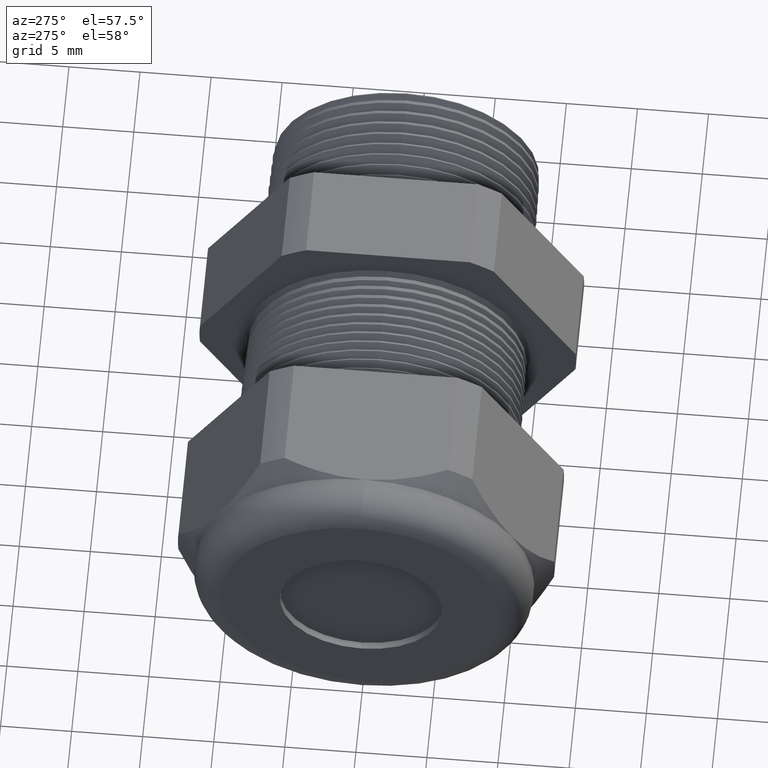
[diagram: clean part render]
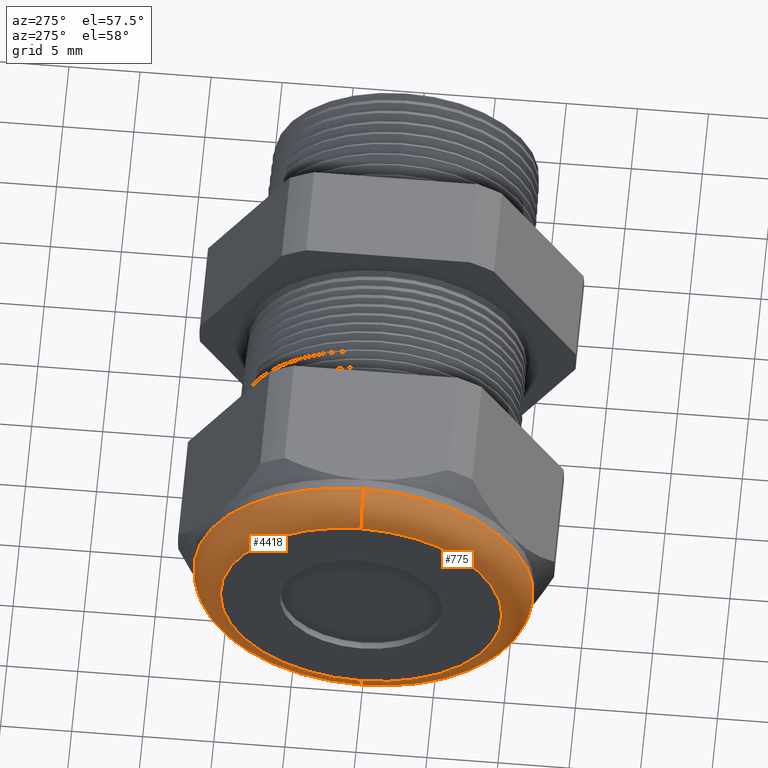
[diagram: same view with one multi-face feature highlighted, each face labeled with its STEP entity id]
A machine part, auxiliary view. The highlighted faces form ONE feature: a constant-radius fillet chain: 2 tangent blend faces with common blend radius 2.032 mm. The faces share edges in the B-rep.
Their STEP definitions:
[1] entity #4418 (Torus):
#3136 = DIRECTION ( 'NONE',  ( 0.0000000000000000000, 0.0000000000000000000, 1.000000000000000000 ) ) ;
#3137 = DIRECTION ( 'NONE',  ( -1.000000000000000000, 0.0000000000000000000, 0.0000000000000000000 ) ) ;
#3138 = AXIS2_PLACEMENT_3D ( 'NONE', #3141, #3137, #3136 ) ;
#3139 = TOROIDAL_SURFACE ( 'NONE', #3138, 0.3899999999999999600, 0.08000000000000000200 ) ;
#3141 = CARTESIAN_POINT ( 'NONE',  ( -1.330000000000000100, 0.0000000000000000000, 0.0000000000000000000 ) ) ;
#3142 = FACE_OUTER_BOUND ( 'NONE', #4419, .T. ) ;
#3143 = CARTESIAN_POINT ( 'NONE',  ( -1.330000000000000100, 0.0000000000000000000, -0.4699999999999999200 ) ) ;
#3420 = CARTESIAN_POINT ( 'NONE',  ( -1.409999999999999900, 0.0000000000000000000, 0.3899999999999999600 ) ) ;
#3436 = CIRCLE ( 'NONE', #3497, 0.07999999999999996000 ) ;
#3468 = DIRECTION ( 'NONE',  ( 0.0000000000000000000, 0.0000000000000000000, 1.000000000000000000 ) ) ;
#3469 = DIRECTION ( 'NONE',  ( 1.000000000000000000, 0.0000000000000000000, 0.0000000000000000000 ) ) ;
#3470 = CARTESIAN_POINT ( 'NONE',  ( -1.330000000000000100, 0.0000000000000000000, 0.0000000000000000000 ) ) ;
#3471 = AXIS2_PLACEMENT_3D ( 'NONE', #3470, #3469, #3468 ) ;
#3472 = CIRCLE ( 'NONE', #3471, 0.4699999999999999200 ) ;
#3474 = CARTESIAN_POINT ( 'NONE',  ( -1.330000000000000100, 5.755839955992558400E-017, 0.4699999999999999200 ) ) ;
#3476 = DIRECTION ( 'NONE',  ( 0.0000000000000000000, -1.224646799147353900E-016, 1.000000000000000000 ) ) ;
#3477 = DIRECTION ( 'NONE',  ( 0.0000000000000000000, 1.000000000000000000, 1.224646799147353200E-016 ) ) ;
#3478 = CARTESIAN_POINT ( 'NONE',  ( -1.330000000000000100, 4.776122516674676800E-017, -0.3899999999999999600 ) ) ;
#3479 = AXIS2_PLACEMENT_3D ( 'NONE', #3478, #3477, #3476 ) ;
#3480 = CIRCLE ( 'NONE', #3479, 0.07999999999999996000 ) ;
#3481 = CARTESIAN_POINT ( 'NONE',  ( -1.409999999999999900, 5.265981236333617600E-017, -0.3899999999999999600 ) ) ;
#3482 = DIRECTION ( 'NONE',  ( 0.0000000000000000000, 0.0000000000000000000, 1.000000000000000000 ) ) ;
#3483 = DIRECTION ( 'NONE',  ( -1.000000000000000000, 0.0000000000000000000, 0.0000000000000000000 ) ) ;
#3484 = CARTESIAN_POINT ( 'NONE',  ( -1.409999999999999900, 0.0000000000000000000, 0.0000000000000000000 ) ) ;
#3485 = AXIS2_PLACEMENT_3D ( 'NONE', #3484, #3483, #3482 ) ;
#3486 = CIRCLE ( 'NONE', #3485, 0.3899999999999999600 ) ;
#3494 = DIRECTION ( 'NONE',  ( 0.0000000000000000000, 0.0000000000000000000, -1.000000000000000000 ) ) ;
#3495 = DIRECTION ( 'NONE',  ( 0.0000000000000000000, -1.000000000000000000, 0.0000000000000000000 ) ) ;
#3496 = CARTESIAN_POINT ( 'NONE',  ( -1.330000000000000100, 0.0000000000000000000, 0.3899999999999999600 ) ) ;
#3497 = AXIS2_PLACEMENT_3D ( 'NONE', #3496, #3495, #3494 ) ;
#4417 = VERTEX_POINT ( 'NONE', #3143 ) ;
#4418 = ADVANCED_FACE ( 'NONE', ( #3142 ), #3139, .T. ) ;
#4419 = EDGE_LOOP ( 'NONE', ( #4599, #4597, #4596, #4589 ) ) ;
#4566 = VERTEX_POINT ( 'NONE', #3420 ) ;
#4589 = ORIENTED_EDGE ( 'NONE', *, *, #4590, .F. ) ;
#4590 = EDGE_CURVE ( 'NONE', #4600, #4566, #3436, .T. ) ;
#4593 = EDGE_CURVE ( 'NONE', #4566, #4594, #3486, .T. ) ;
#4594 = VERTEX_POINT ( 'NONE', #3481 ) ;
#4595 = EDGE_CURVE ( 'NONE', #4417, #4594, #3480, .T. ) ;
#4596 = ORIENTED_EDGE ( 'NONE', *, *, #4593, .F. ) ;
#4597 = ORIENTED_EDGE ( 'NONE', *, *, #4595, .T. ) ;
#4599 = ORIENTED_EDGE ( 'NONE', *, *, #4601, .F. ) ;
#4600 = VERTEX_POINT ( 'NONE', #3474 ) ;
#4601 = EDGE_CURVE ( 'NONE', #4417, #4600, #3472, .T. ) ;
[2] entity #775 (Torus):
#583 = EDGE_CURVE ( 'NONE', #4600, #4417, #2265, .T. ) ;
#650 = EDGE_CURVE ( 'NONE', #4594, #4566, #2401, .T. ) ;
#775 = ADVANCED_FACE ( 'NONE', ( #2598 ), #2597, .T. ) ;
#776 = EDGE_LOOP ( 'NONE', ( #777, #778, #779, #780 ) ) ;
#777 = ORIENTED_EDGE ( 'NONE', *, *, #4595, .F. ) ;
#778 = ORIENTED_EDGE ( 'NONE', *, *, #583, .F. ) ;
#779 = ORIENTED_EDGE ( 'NONE', *, *, #4590, .T. ) ;
#780 = ORIENTED_EDGE ( 'NONE', *, *, #650, .F. ) ;
#2262 = DIRECTION ( 'NONE',  ( 0.0000000000000000000, 0.0000000000000000000, 1.000000000000000000 ) ) ;
#2263 = DIRECTION ( 'NONE',  ( 1.000000000000000000, 0.0000000000000000000, 0.0000000000000000000 ) ) ;
#2264 = AXIS2_PLACEMENT_3D ( 'NONE', #2270, #2263, #2262 ) ;
#2265 = CIRCLE ( 'NONE', #2264, 0.4699999999999999200 ) ;
#2270 = CARTESIAN_POINT ( 'NONE',  ( -1.330000000000000100, 0.0000000000000000000, 0.0000000000000000000 ) ) ;
#2397 = DIRECTION ( 'NONE',  ( 0.0000000000000000000, 0.0000000000000000000, 1.000000000000000000 ) ) ;
#2398 = DIRECTION ( 'NONE',  ( -1.000000000000000000, 0.0000000000000000000, 0.0000000000000000000 ) ) ;
#2399 = CARTESIAN_POINT ( 'NONE',  ( -1.409999999999999900, 0.0000000000000000000, 0.0000000000000000000 ) ) ;
#2400 = AXIS2_PLACEMENT_3D ( 'NONE', #2399, #2398, #2397 ) ;
#2401 = CIRCLE ( 'NONE', #2400, 0.3899999999999999600 ) ;
#2537 = CARTESIAN_POINT ( 'NONE',  ( -1.330000000000000100, 0.0000000000000000000, 0.0000000000000000000 ) ) ;
#2594 = DIRECTION ( 'NONE',  ( 0.0000000000000000000, 0.0000000000000000000, 1.000000000000000000 ) ) ;
#2595 = DIRECTION ( 'NONE',  ( -1.000000000000000000, 0.0000000000000000000, 0.0000000000000000000 ) ) ;
#2596 = AXIS2_PLACEMENT_3D ( 'NONE', #2537, #2595, #2594 ) ;
#2597 = TOROIDAL_SURFACE ( 'NONE', #2596, 0.3899999999999999600, 0.08000000000000000200 ) ;
#2598 = FACE_OUTER_BOUND ( 'NONE', #776, .T. ) ;
#3143 = CARTESIAN_POINT ( 'NONE',  ( -1.330000000000000100, 0.0000000000000000000, -0.4699999999999999200 ) ) ;
#3420 = CARTESIAN_POINT ( 'NONE',  ( -1.409999999999999900, 0.0000000000000000000, 0.3899999999999999600 ) ) ;
#3436 = CIRCLE ( 'NONE', #3497, 0.07999999999999996000 ) ;
#3474 = CARTESIAN_POINT ( 'NONE',  ( -1.330000000000000100, 5.755839955992558400E-017, 0.4699999999999999200 ) ) ;
#3476 = DIRECTION ( 'NONE',  ( 0.0000000000000000000, -1.224646799147353900E-016, 1.000000000000000000 ) ) ;
#3477 = DIRECTION ( 'NONE',  ( 0.0000000000000000000, 1.000000000000000000, 1.224646799147353200E-016 ) ) ;
#3478 = CARTESIAN_POINT ( 'NONE',  ( -1.330000000000000100, 4.776122516674676800E-017, -0.3899999999999999600 ) ) ;
#3479 = AXIS2_PLACEMENT_3D ( 'NONE', #3478, #3477, #3476 ) ;
#3480 = CIRCLE ( 'NONE', #3479, 0.07999999999999996000 ) ;
#3481 = CARTESIAN_POINT ( 'NONE',  ( -1.409999999999999900, 5.265981236333617600E-017, -0.3899999999999999600 ) ) ;
#3494 = DIRECTION ( 'NONE',  ( 0.0000000000000000000, 0.0000000000000000000, -1.000000000000000000 ) ) ;
#3495 = DIRECTION ( 'NONE',  ( 0.0000000000000000000, -1.000000000000000000, 0.0000000000000000000 ) ) ;
#3496 = CARTESIAN_POINT ( 'NONE',  ( -1.330000000000000100, 0.0000000000000000000, 0.3899999999999999600 ) ) ;
#3497 = AXIS2_PLACEMENT_3D ( 'NONE', #3496, #3495, #3494 ) ;
#4417 = VERTEX_POINT ( 'NONE', #3143 ) ;
#4566 = VERTEX_POINT ( 'NONE', #3420 ) ;
#4590 = EDGE_CURVE ( 'NONE', #4600, #4566, #3436, .T. ) ;
#4594 = VERTEX_POINT ( 'NONE', #3481 ) ;
#4595 = EDGE_CURVE ( 'NONE', #4417, #4594, #3480, .T. ) ;
#4600 = VERTEX_POINT ( 'NONE', #3474 ) ;